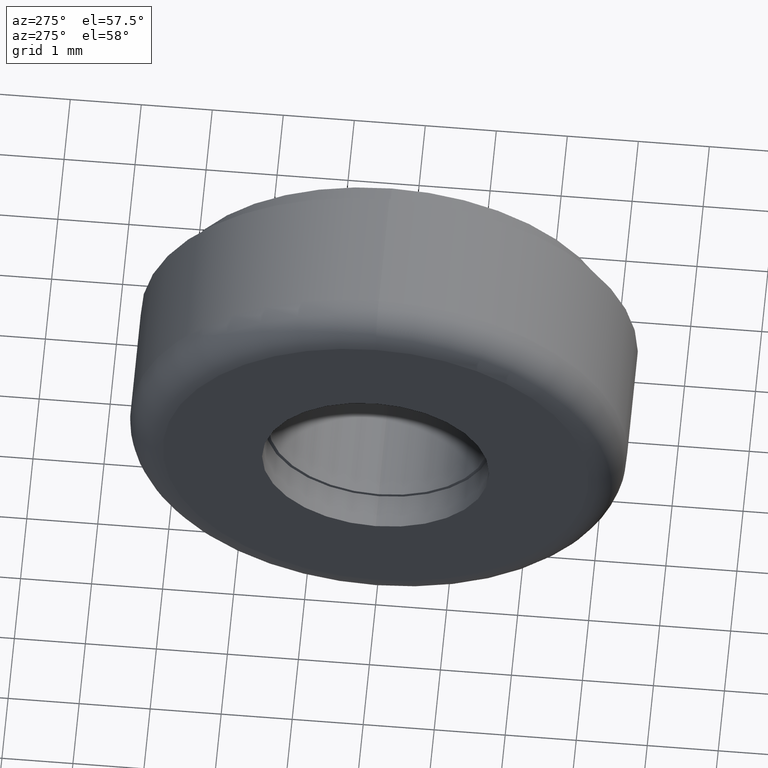
[diagram: clean part render]
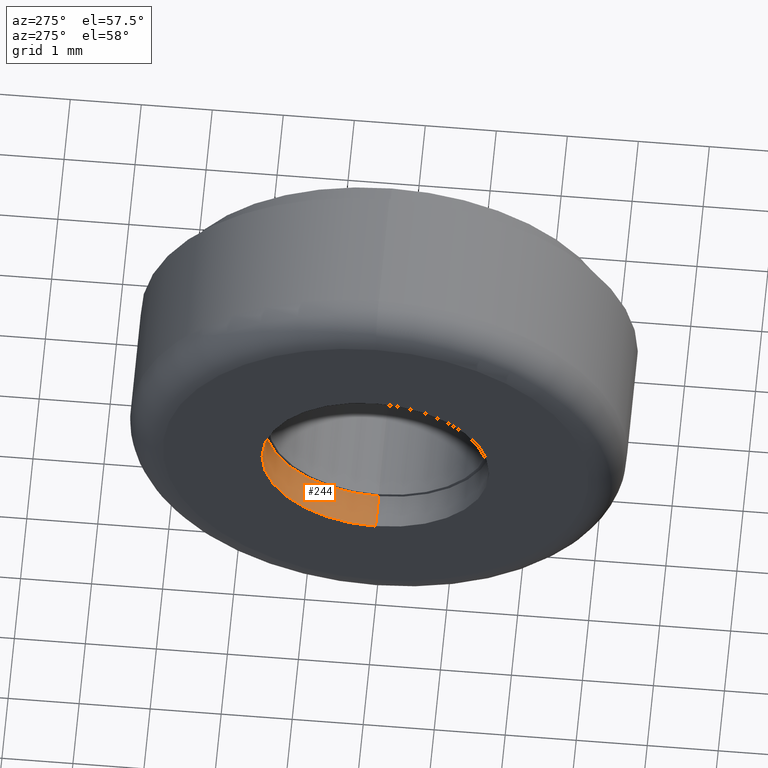
[diagram: same view with one face highlighted and labeled with its STEP entity id]
A machine part, auxiliary view. The second image highlights one B-rep face of the part: STEP entity #244.
In plain terms, the highlighted cylindrical surface (partial cylindrical patch) has radius 1.6 mm, axis along (-1, 0, 0).
Its self-contained STEP definition (entity closure, byte-faithful):
#4 = EDGE_CURVE ( 'NONE', #118, #221, #40, .T. ) ;
#40 = LINE ( 'NONE', #475, #663 ) ;
#48 = ORIENTED_EDGE ( 'NONE', *, *, #340, .F. ) ;
#60 = CIRCLE ( 'NONE', #384, 1.600000000000000100 ) ;
#118 = VERTEX_POINT ( 'NONE', #195 ) ;
#121 = CARTESIAN_POINT ( 'NONE',  ( 0.5000000000000000000, 1.959434878635765200E-016, -1.600000000000000100 ) ) ;
#129 = VECTOR ( 'NONE', #631, 1000.000000000000000 ) ;
#147 = DIRECTION ( 'NONE',  ( 0.0000000000000000000, 0.0000000000000000000, -1.000000000000000000 ) ) ;
#195 = CARTESIAN_POINT ( 'NONE',  ( 0.5000000000000000000, 0.0000000000000000000, 1.600000000000000100 ) ) ;
#221 = VERTEX_POINT ( 'NONE', #382 ) ;
#241 = FACE_OUTER_BOUND ( 'NONE', #447, .T. ) ;
#244 = ADVANCED_FACE ( 'NONE', ( #241 ), #354, .F. ) ;
#259 = AXIS2_PLACEMENT_3D ( 'NONE', #349, #345, #350 ) ;
#291 = ORIENTED_EDGE ( 'NONE', *, *, #4, .T. ) ;
#340 = EDGE_CURVE ( 'NONE', #565, #221, #435, .T. ) ;
#342 = EDGE_CURVE ( 'NONE', #425, #565, #726, .T. ) ;
#345 = DIRECTION ( 'NONE',  ( -1.000000000000000000, 0.0000000000000000000, 0.0000000000000000000 ) ) ;
#346 = ORIENTED_EDGE ( 'NONE', *, *, #645, .F. ) ;
#349 = CARTESIAN_POINT ( 'NONE',  ( 2.200000000000000200, 0.0000000000000000000, 0.0000000000000000000 ) ) ;
#350 = DIRECTION ( 'NONE',  ( 0.0000000000000000000, 0.0000000000000000000, 1.000000000000000000 ) ) ;
#354 = CYLINDRICAL_SURFACE ( 'NONE', #259, 1.600000000000000100 ) ;
#382 = CARTESIAN_POINT ( 'NONE',  ( 0.0000000000000000000, 0.0000000000000000000, 1.600000000000000100 ) ) ;
#384 = AXIS2_PLACEMENT_3D ( 'NONE', #424, #468, #147 ) ;
#413 = DIRECTION ( 'NONE',  ( 0.0000000000000000000, 0.0000000000000000000, -1.000000000000000000 ) ) ;
#424 = CARTESIAN_POINT ( 'NONE',  ( 0.5000000000000000000, 0.0000000000000000000, 0.0000000000000000000 ) ) ;
#425 = VERTEX_POINT ( 'NONE', #121 ) ;
#428 = DIRECTION ( 'NONE',  ( -1.000000000000000000, 0.0000000000000000000, 0.0000000000000000000 ) ) ;
#435 = CIRCLE ( 'NONE', #688, 1.600000000000000100 ) ;
#447 = EDGE_LOOP ( 'NONE', ( #653, #346, #291, #48 ) ) ;
#468 = DIRECTION ( 'NONE',  ( -1.000000000000000000, -0.0000000000000000000, -0.0000000000000000000 ) ) ;
#475 = CARTESIAN_POINT ( 'NONE',  ( 2.200000000000000200, 0.0000000000000000000, 1.600000000000000100 ) ) ;
#504 = DIRECTION ( 'NONE',  ( 1.000000000000000000, 0.0000000000000000000, 0.0000000000000000000 ) ) ;
#565 = VERTEX_POINT ( 'NONE', #692 ) ;
#620 = CARTESIAN_POINT ( 'NONE',  ( 0.0000000000000000000, 0.0000000000000000000, 0.0000000000000000000 ) ) ;
#631 = DIRECTION ( 'NONE',  ( -1.000000000000000000, 0.0000000000000000000, 0.0000000000000000000 ) ) ;
#645 = EDGE_CURVE ( 'NONE', #118, #425, #60, .T. ) ;
#653 = ORIENTED_EDGE ( 'NONE', *, *, #342, .F. ) ;
#663 = VECTOR ( 'NONE', #428, 1000.000000000000000 ) ;
#688 = AXIS2_PLACEMENT_3D ( 'NONE', #620, #504, #413 ) ;
#692 = CARTESIAN_POINT ( 'NONE',  ( 0.0000000000000000000, 1.959434878635765200E-016, -1.600000000000000100 ) ) ;
#694 = CARTESIAN_POINT ( 'NONE',  ( 2.200000000000000200, 1.959434878635765200E-016, -1.600000000000000100 ) ) ;
#726 = LINE ( 'NONE', #694, #129 ) ;